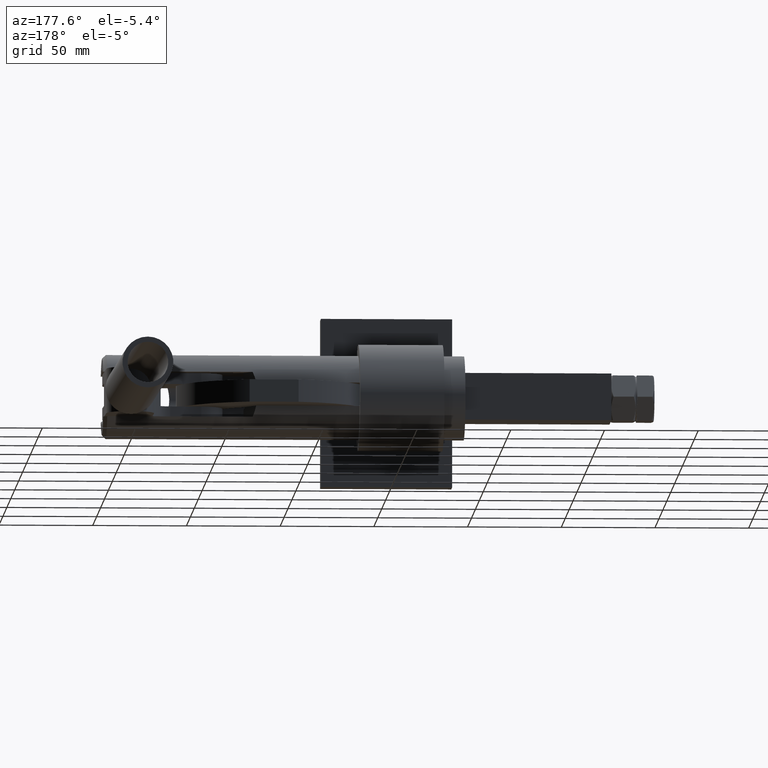
[diagram: clean part render]
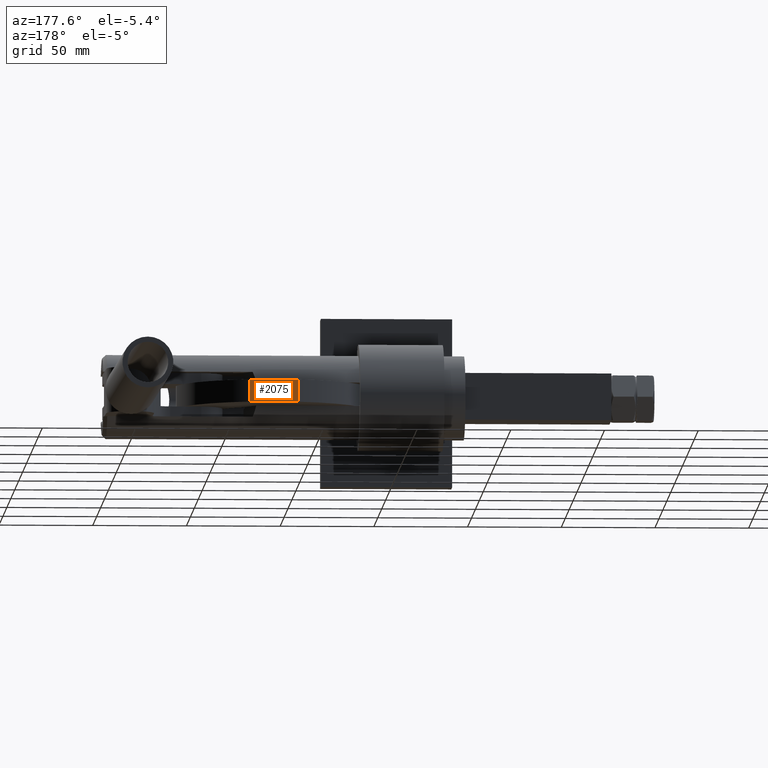
[diagram: same view with one face highlighted and labeled with its STEP entity id]
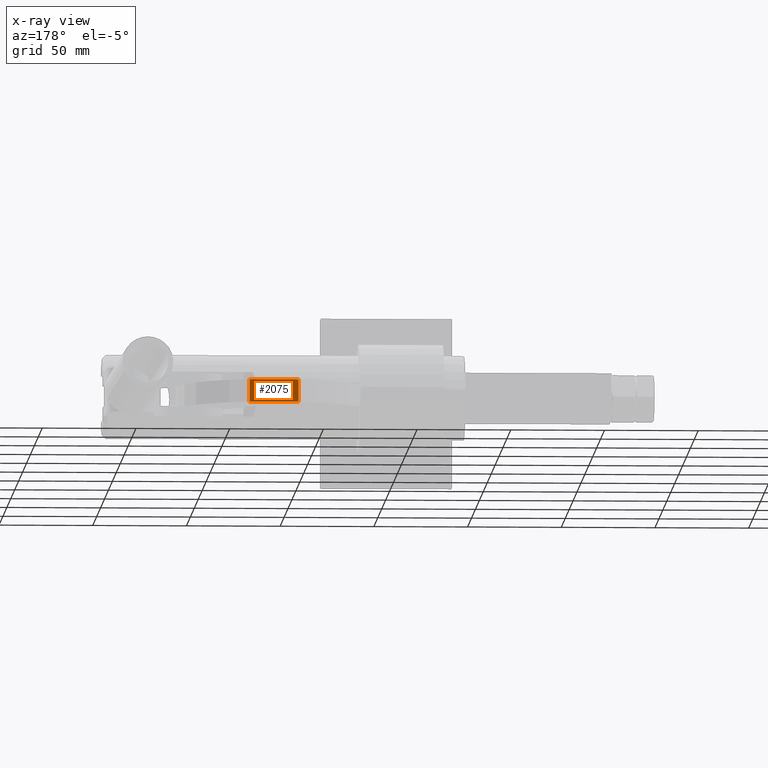
[diagram: x-ray of the same camera — body ghosted, the highlighted face saturated]
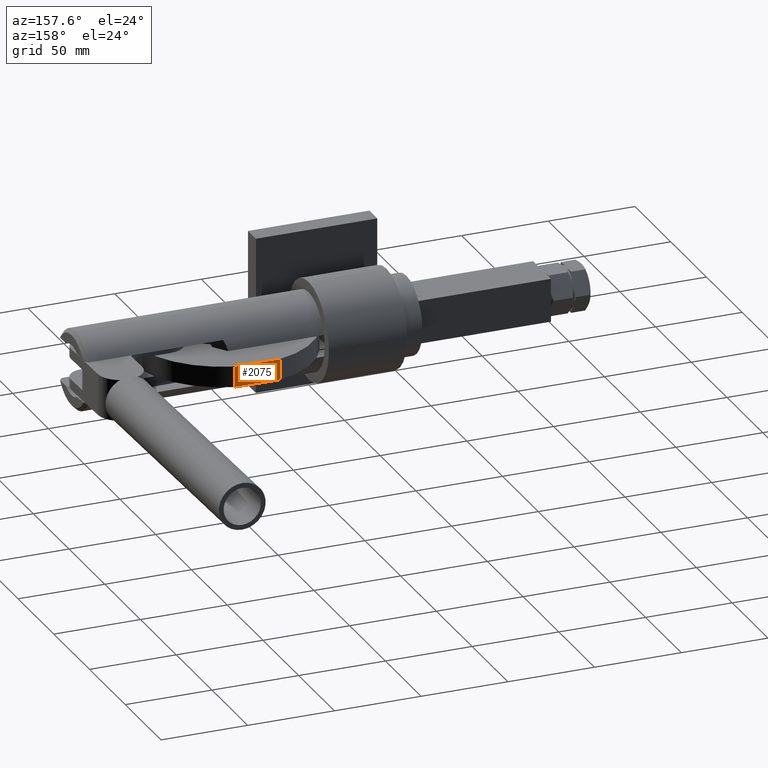
[diagram: same view with one face highlighted and labeled with its STEP entity id]
A machine part, auxiliary view. The second image highlights one B-rep face of the part: STEP entity #2075.
The next image is the same camera in x-ray: the body ghosted, the highlighted face saturated — about 0% of this face is hidden behind the body in this view.
A second angle (auxiliary view) of the same face is appended — the face is thin or edge-on in the first view.
In plain terms, the highlighted planar face has unit normal (-0.009, -1, -0).
Its self-contained STEP definition (entity closure, byte-faithful):
#259 = EDGE_CURVE ( 'NONE', #1428, #3033, #4746, .T. ) ;
#294 = DIRECTION ( 'NONE',  ( -2.568924252365853200E-021, 3.645699685958769200E-021, -1.000000000000000000 ) ) ;
#316 = VECTOR ( 'NONE', #2917, 1000.000000000000000 ) ;
#523 = ORIENTED_EDGE ( 'NONE', *, *, #1368, .F. ) ;
#548 = VERTEX_POINT ( 'NONE', #4817 ) ;
#654 = CARTESIAN_POINT ( 'NONE',  ( 75.94784343362671600, 80.63253448661423300, 6.000000000000000000 ) ) ;
#687 = VECTOR ( 'NONE', #294, 1000.000000000000000 ) ;
#822 = DIRECTION ( 'NONE',  ( -0.009032594774782706400, -0.9999592052837128500, -3.622346908895680000E-021 ) ) ;
#884 = FACE_OUTER_BOUND ( 'NONE', #2927, .T. ) ;
#1094 = ORIENTED_EDGE ( 'NONE', *, *, #4823, .T. ) ;
#1368 = EDGE_CURVE ( 'NONE', #5551, #548, #2997, .T. ) ;
#1428 = VERTEX_POINT ( 'NONE', #4638 ) ;
#1550 = CARTESIAN_POINT ( 'NONE',  ( 49.81740754496326000, 80.86856975427673400, 6.000000000000000000 ) ) ;
#1657 = AXIS2_PLACEMENT_3D ( 'NONE', #2105, #822, #3839 ) ;
#2075 = ADVANCED_FACE ( 'NONE', ( #884 ), #3408, .F. ) ;
#2105 = CARTESIAN_POINT ( 'NONE',  ( 49.81740754496326000, 80.86856975427673400, 6.000000000000000000 ) ) ;
#2610 = CARTESIAN_POINT ( 'NONE',  ( 49.81740754496326000, 80.86856975427673400, 6.000000000000000000 ) ) ;
#2656 = CARTESIAN_POINT ( 'NONE',  ( 75.94784343362671600, 80.63253448661423300, -6.000000000000000000 ) ) ;
#2917 = DIRECTION ( 'NONE',  ( -2.568924252365853200E-021, 3.645699685958769200E-021, -1.000000000000000000 ) ) ;
#2927 = EDGE_LOOP ( 'NONE', ( #1094, #523, #4847, #3149 ) ) ;
#2997 = LINE ( 'NONE', #4148, #687 ) ;
#3033 = VERTEX_POINT ( 'NONE', #2656 ) ;
#3036 = DIRECTION ( 'NONE',  ( -0.9999592052837128500, 0.009032594774782706400, 2.601749581763633000E-021 ) ) ;
#3149 = ORIENTED_EDGE ( 'NONE', *, *, #259, .T. ) ;
#3389 = VECTOR ( 'NONE', #5381, 1000.000000000000000 ) ;
#3408 = PLANE ( 'NONE',  #1657 ) ;
#3839 = DIRECTION ( 'NONE',  ( -2.568924252365853200E-021, 3.645699685958769200E-021, -1.000000000000000000 ) ) ;
#4014 = VECTOR ( 'NONE', #3036, 1000.000000000000000 ) ;
#4148 = CARTESIAN_POINT ( 'NONE',  ( 49.81740754496326000, 80.86856975427673400, 6.000000000000000000 ) ) ;
#4495 = LINE ( 'NONE', #4927, #3389 ) ;
#4638 = CARTESIAN_POINT ( 'NONE',  ( 75.94784343362671600, 80.63253448661423300, 6.000000000000000000 ) ) ;
#4746 = LINE ( 'NONE', #654, #316 ) ;
#4817 = CARTESIAN_POINT ( 'NONE',  ( 49.81740754496326000, 80.86856975427673400, -6.000000000000000000 ) ) ;
#4823 = EDGE_CURVE ( 'NONE', #3033, #548, #4495, .T. ) ;
#4847 = ORIENTED_EDGE ( 'NONE', *, *, #5234, .F. ) ;
#4927 = CARTESIAN_POINT ( 'NONE',  ( 49.81740754496326000, 80.86856975427673400, -6.000000000000000000 ) ) ;
#5150 = LINE ( 'NONE', #2610, #4014 ) ;
#5234 = EDGE_CURVE ( 'NONE', #1428, #5551, #5150, .T. ) ;
#5381 = DIRECTION ( 'NONE',  ( -0.9999592052837128500, 0.009032594774782706400, 2.601749581763633000E-021 ) ) ;
#5551 = VERTEX_POINT ( 'NONE', #1550 ) ;